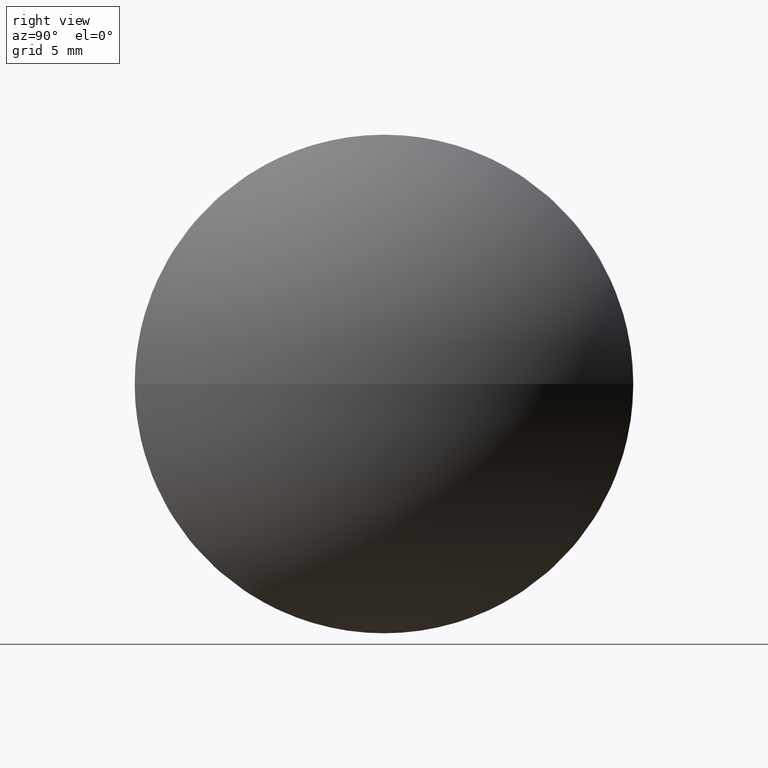
[diagram: clean part render]
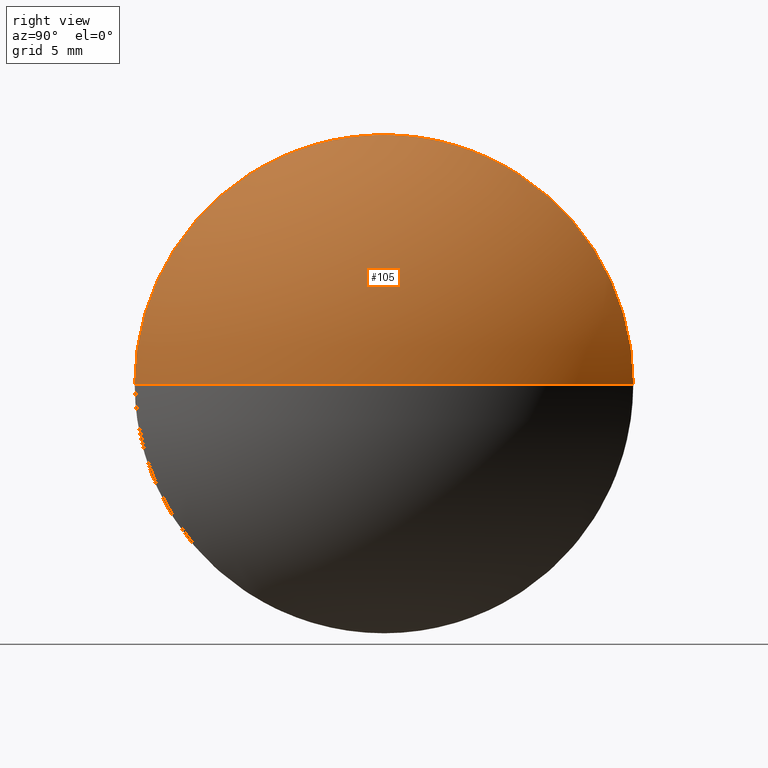
[diagram: same view with one face highlighted and labeled with its STEP entity id]
A machine part, right view. The second image highlights one B-rep face of the part: STEP entity #105.
In plain terms, the highlighted spherical surface has radius 15.128 mm.
Its self-contained STEP definition (entity closure, byte-faithful):
#3 = FACE_OUTER_BOUND ( 'NONE', #33, .T. ) ;
#9 = DIRECTION ( 'NONE',  ( 0.0000000000000000000, 1.224646799147353200E-016, -1.000000000000000000 ) ) ;
#10 = DIRECTION ( 'NONE',  ( -0.0000000000000000000, 0.0000000000000000000, -1.000000000000000000 ) ) ;
#19 = CIRCLE ( 'NONE', #52, 15.12800000000000200 ) ;
#27 = CARTESIAN_POINT ( 'NONE',  ( 118.7754838021861900, 52.53355492641219400, -1.555301434917138200E-015 ) ) ;
#29 = AXIS2_PLACEMENT_3D ( 'NONE', #142, #112, #173 ) ;
#31 = EDGE_CURVE ( 'NONE', #91, #186, #35, .T. ) ;
#33 = EDGE_LOOP ( 'NONE', ( #81, #145, #87, #68 ) ) ;
#35 = CIRCLE ( 'NONE', #82, 12.70000000000000300 ) ;
#44 = CARTESIAN_POINT ( 'NONE',  ( 110.5556064308381300, 65.23355492641219700, 0.0000000000000000000 ) ) ;
#46 = CARTESIAN_POINT ( 'NONE',  ( 110.5556064308381300, 65.23355492641219700, 0.0000000000000000000 ) ) ;
#50 = VERTEX_POINT ( 'NONE', #56 ) ;
#52 = AXIS2_PLACEMENT_3D ( 'NONE', #44, #9, #74 ) ;
#54 = CIRCLE ( 'NONE', #140, 12.70000000000000300 ) ;
#56 = CARTESIAN_POINT ( 'NONE',  ( 125.6836064308381300, 65.23355492641219700, 0.0000000000000000000 ) ) ;
#61 = DIRECTION ( 'NONE',  ( -1.000000000000000000, -0.0000000000000000000, -0.0000000000000000000 ) ) ;
#68 = ORIENTED_EDGE ( 'NONE', *, *, #177, .F. ) ;
#72 = CARTESIAN_POINT ( 'NONE',  ( 118.7754838021861900, 65.23355492641219700, 0.0000000000000000000 ) ) ;
#73 = AXIS2_PLACEMENT_3D ( 'NONE', #46, #10, #113 ) ;
#74 = DIRECTION ( 'NONE',  ( 0.0000000000000000000, 1.000000000000000000, 1.224646799147352700E-016 ) ) ;
#81 = ORIENTED_EDGE ( 'NONE', *, *, #92, .F. ) ;
#82 = AXIS2_PLACEMENT_3D ( 'NONE', #122, #108, #98 ) ;
#87 = ORIENTED_EDGE ( 'NONE', *, *, #31, .F. ) ;
#89 = SPHERICAL_SURFACE ( 'NONE', #73, 15.12799999999999500 ) ;
#91 = VERTEX_POINT ( 'NONE', #181 ) ;
#92 = EDGE_CURVE ( 'NONE', #50, #178, #19, .T. ) ;
#98 = DIRECTION ( 'NONE',  ( 0.0000000000000000000, 0.0000000000000000000, 1.000000000000000000 ) ) ;
#105 = ADVANCED_FACE ( 'NONE', ( #3 ), #89, .T. ) ;
#108 = DIRECTION ( 'NONE',  ( -1.000000000000000000, -0.0000000000000000000, -0.0000000000000000000 ) ) ;
#112 = DIRECTION ( 'NONE',  ( -0.0000000000000000000, 0.0000000000000000000, 1.000000000000000000 ) ) ;
#113 = DIRECTION ( 'NONE',  ( 0.0000000000000000000, 1.000000000000000000, 0.0000000000000000000 ) ) ;
#122 = CARTESIAN_POINT ( 'NONE',  ( 118.7754838021861900, 65.23355492641219700, 0.0000000000000000000 ) ) ;
#129 = CARTESIAN_POINT ( 'NONE',  ( 118.7754838021861900, 77.93355492641218500, 0.0000000000000000000 ) ) ;
#140 = AXIS2_PLACEMENT_3D ( 'NONE', #72, #61, #167 ) ;
#142 = CARTESIAN_POINT ( 'NONE',  ( 110.5556064308381300, 65.23355492641219700, 0.0000000000000000000 ) ) ;
#145 = ORIENTED_EDGE ( 'NONE', *, *, #169, .T. ) ;
#159 = CIRCLE ( 'NONE', #29, 15.12799999999998900 ) ;
#167 = DIRECTION ( 'NONE',  ( 0.0000000000000000000, 0.0000000000000000000, 1.000000000000000000 ) ) ;
#169 = EDGE_CURVE ( 'NONE', #50, #186, #159, .T. ) ;
#173 = DIRECTION ( 'NONE',  ( 1.000000000000000000, 0.0000000000000000000, 0.0000000000000000000 ) ) ;
#177 = EDGE_CURVE ( 'NONE', #178, #91, #54, .T. ) ;
#178 = VERTEX_POINT ( 'NONE', #27 ) ;
#181 = CARTESIAN_POINT ( 'NONE',  ( 118.7754838021861900, 65.23355492641219700, 12.70000000000000300 ) ) ;
#186 = VERTEX_POINT ( 'NONE', #129 ) ;